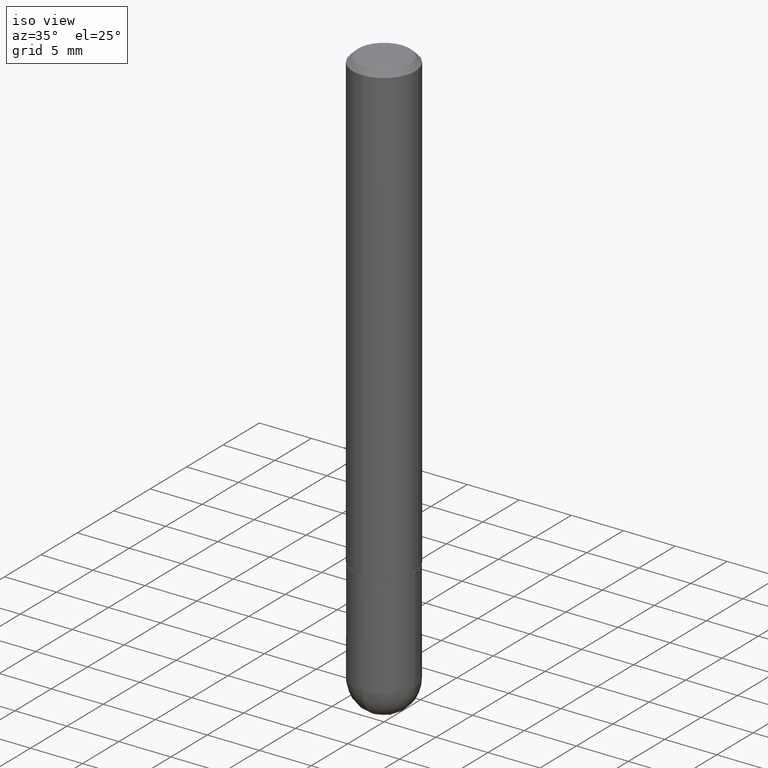
[diagram: clean part render]
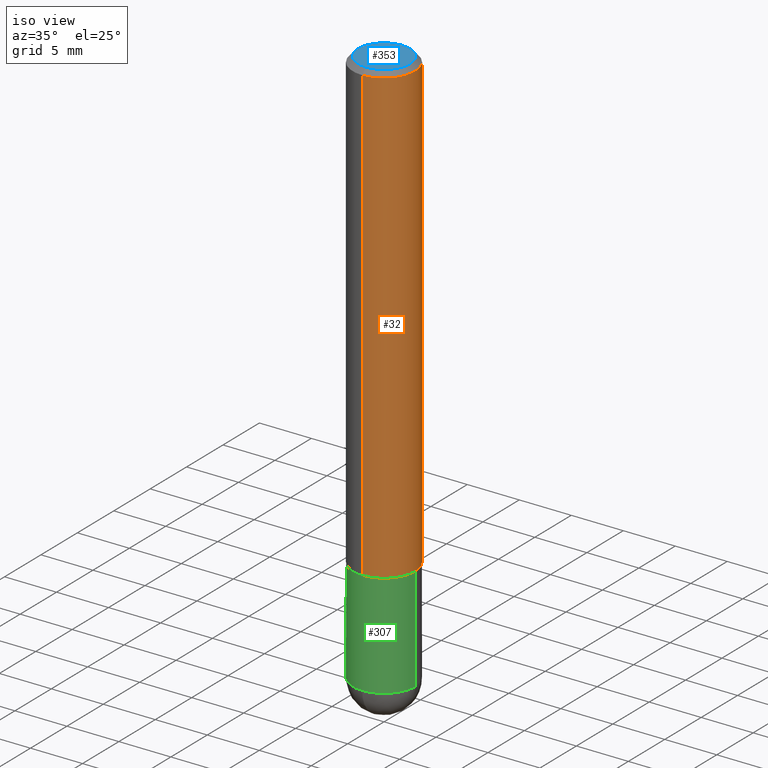
[diagram: same view with three faces highlighted in distinct colors, each labeled with its STEP entity id]
A machine part, iso view with three faces highlighted in distinct colors.
Their STEP definitions:

[orange] entity #32 — the highlighted cylindrical surface (partial cylindrical patch) has radius 2.9997 mm, axis along (-0, 0, 1).
#11 = DIRECTION ( 'NONE',  ( -6.982962677686265133E-15, -1.000000000000000000, 3.491882975495338888E-15 ) ) ;
#12 = DIRECTION ( 'NONE',  ( -2.445188344809910911E-29, 3.491882975495338888E-15, 1.000000000000000000 ) ) ;
#18 = CARTESIAN_POINT ( 'NONE',  ( 8.246878922347484598E-16, 0.1180999999999999273, -0.02000000000000044104 ) ) ;
#23 = VERTEX_POINT ( 'NONE', #285 ) ;
#27 = VERTEX_POINT ( 'NONE', #391 ) ;
#32 = ADVANCED_FACE ( 'NONE', ( #34 ), #66, .T. ) ;
#34 = FACE_OUTER_BOUND ( 'NONE', #260, .T. ) ;
#56 = CIRCLE ( 'NONE', #248, 0.1181000000000002048 ) ;
#61 = EDGE_CURVE ( 'NONE', #27, #116, #101, .T. ) ;
#66 = CYLINDRICAL_SURFACE ( 'NONE', #69, 0.1181000000000001077 ) ;
#69 = AXIS2_PLACEMENT_3D ( 'NONE', #190, #361, #11 ) ;
#87 = DIRECTION ( 'NONE',  ( -6.982962677686265922E-15, -1.000000000000000000, 3.505890868245046092E-15 ) ) ;
#101 = LINE ( 'NONE', #229, #217 ) ;
#110 = ORIENTED_EDGE ( 'NONE', *, *, #172, .T. ) ;
#116 = VERTEX_POINT ( 'NONE', #168 ) ;
#121 = VERTEX_POINT ( 'NONE', #18 ) ;
#131 = ORIENTED_EDGE ( 'NONE', *, *, #267, .T. ) ;
#149 = VECTOR ( 'NONE', #367, 39.37007874015748143 ) ;
#168 = CARTESIAN_POINT ( 'NONE',  ( -8.102248135368172434E-16, -0.1181000000000000660, -0.01999999999999961184 ) ) ;
#169 = DIRECTION ( 'NONE',  ( -6.982962677686265922E-15, -1.000000000000000000, 4.626330217890361448E-15 ) ) ;
#172 = EDGE_CURVE ( 'NONE', #23, #121, #268, .T. ) ;
#190 = CARTESIAN_POINT ( 'NONE',  ( 0.000000000000000000, 0.000000000000000000, 0.000000000000000000 ) ) ;
#193 = AXIS2_PLACEMENT_3D ( 'NONE', #409, #242, #87 ) ;
#203 = CARTESIAN_POINT ( 'NONE',  ( 4.233354581369399407E-29, -6.045496995475080309E-15, -1.731300000000000283 ) ) ;
#217 = VECTOR ( 'NONE', #297, 39.37007874015748143 ) ;
#229 = CARTESIAN_POINT ( 'NONE',  ( -8.246878922347486570E-16, -0.1181000000000001077, 4.123913794059998964E-16 ) ) ;
#242 = DIRECTION ( 'NONE',  ( -2.445188344809910911E-29, 3.491882975495338888E-15, 1.000000000000000000 ) ) ;
#248 = AXIS2_PLACEMENT_3D ( 'NONE', #203, #12, #169 ) ;
#260 = EDGE_LOOP ( 'NONE', ( #131, #110, #388, #304 ) ) ;
#265 = CIRCLE ( 'NONE', #193, 0.1180999999999999966 ) ;
#267 = EDGE_CURVE ( 'NONE', #27, #23, #56, .T. ) ;
#268 = LINE ( 'NONE', #299, #149 ) ;
#285 = CARTESIAN_POINT ( 'NONE',  ( 8.391509709327007782E-16, 0.1180999999999941541, -1.731300000000000727 ) ) ;
#297 = DIRECTION ( 'NONE',  ( -2.445188344809910911E-29, 3.491882975495338493E-15, 1.000000000000000000 ) ) ;
#299 = CARTESIAN_POINT ( 'NONE',  ( 8.391509709326788873E-16, 0.1181000000000001077, -4.123913794059998964E-16 ) ) ;
#304 = ORIENTED_EDGE ( 'NONE', *, *, #61, .F. ) ;
#361 = DIRECTION ( 'NONE',  ( -2.445188344809910911E-29, 3.491882975495338888E-15, 1.000000000000000000 ) ) ;
#367 = DIRECTION ( 'NONE',  ( -2.445188344809910911E-29, 3.491882975495338493E-15, 1.000000000000000000 ) ) ;
#388 = ORIENTED_EDGE ( 'NONE', *, *, #410, .F. ) ;
#391 = CARTESIAN_POINT ( 'NONE',  ( -8.246878922347070446E-16, -0.1181000000000062417, -1.731299999999999617 ) ) ;
#409 = CARTESIAN_POINT ( 'NONE',  ( 4.890376689619828269E-31, -6.983765950990686946E-17, -0.02000000000000002470 ) ) ;
#410 = EDGE_CURVE ( 'NONE', #116, #121, #265, .T. ) ;

[blue] entity #353 — the highlighted planar face has unit normal (0, -0, -1).
#28 = CARTESIAN_POINT ( 'NONE',  ( -7.416198335591022079E-16, -0.09809999999999999276, 3.810097328625765958E-16 ) ) ;
#46 = CIRCLE ( 'NONE', #301, 0.09809999999999999276 ) ;
#134 = EDGE_LOOP ( 'NONE', ( #306, #247 ) ) ;
#135 = DIRECTION ( 'NONE',  ( -6.982962677686265922E-15, -1.000000000000000000, 3.491882975495338888E-15 ) ) ;
#139 = CARTESIAN_POINT ( 'NONE',  ( -9.403219469350512246E-46, 1.342838969830929492E-31, 3.845601296648385233E-17 ) ) ;
#142 = FACE_OUTER_BOUND ( 'NONE', #134, .T. ) ;
#147 = PLANE ( 'NONE',  #170 ) ;
#154 = EDGE_CURVE ( 'NONE', #322, #327, #46, .T. ) ;
#170 = AXIS2_PLACEMENT_3D ( 'NONE', #340, #272, #180 ) ;
#171 = DIRECTION ( 'NONE',  ( -2.445188344809910911E-29, 3.491882975495338888E-15, 1.000000000000000000 ) ) ;
#178 = CARTESIAN_POINT ( 'NONE',  ( 7.548582654578854574E-16, 0.09809999999999999276, -3.040977069296088172E-16 ) ) ;
#180 = DIRECTION ( 'NONE',  ( 6.982962677686265922E-15, 1.000000000000000000, -3.491882975495338493E-15 ) ) ;
#211 = EDGE_CURVE ( 'NONE', #327, #322, #270, .T. ) ;
#247 = ORIENTED_EDGE ( 'NONE', *, *, #211, .T. ) ;
#270 = CIRCLE ( 'NONE', #395, 0.09809999999999999276 ) ;
#272 = DIRECTION ( 'NONE',  ( 2.445188344809910911E-29, -3.491882975495338493E-15, -1.000000000000000000 ) ) ;
#301 = AXIS2_PLACEMENT_3D ( 'NONE', #365, #171, #302 ) ;
#302 = DIRECTION ( 'NONE',  ( -6.982962677686265922E-15, -1.000000000000000000, 3.491882975495338888E-15 ) ) ;
#305 = DIRECTION ( 'NONE',  ( -2.445188344809910911E-29, 3.491882975495338888E-15, 1.000000000000000000 ) ) ;
#306 = ORIENTED_EDGE ( 'NONE', *, *, #154, .T. ) ;
#322 = VERTEX_POINT ( 'NONE', #178 ) ;
#327 = VERTEX_POINT ( 'NONE', #28 ) ;
#340 = CARTESIAN_POINT ( 'NONE',  ( 6.850286386810226523E-16, 0.09809999999999999276, -3.233257134128507618E-16 ) ) ;
#353 = ADVANCED_FACE ( 'NONE', ( #142 ), #147, .F. ) ;
#365 = CARTESIAN_POINT ( 'NONE',  ( -9.403219469350512246E-46, 1.342838969830929492E-31, 3.845601296648385233E-17 ) ) ;
#395 = AXIS2_PLACEMENT_3D ( 'NONE', #139, #305, #135 ) ;

[green] entity #307 — the highlighted cylindrical surface (partial cylindrical patch) has radius 2.9997 mm, axis along (-0, 0, 1).
#1 = DIRECTION ( 'NONE',  ( 1.000000000000000000, -6.982962677686265133E-15, 0.000000000000000000 ) ) ;
#2 = ORIENTED_EDGE ( 'NONE', *, *, #333, .F. ) ;
#21 = AXIS2_PLACEMENT_3D ( 'NONE', #83, #239, #1 ) ;
#22 = CARTESIAN_POINT ( 'NONE',  ( -0.1180999999999999966, -5.896440253896576841E-15, -2.125999999999999890 ) ) ;
#31 = CIRCLE ( 'NONE', #210, 0.1180999999999999966 ) ;
#37 = ORIENTED_EDGE ( 'NONE', *, *, #398, .T. ) ;
#50 = CARTESIAN_POINT ( 'NONE',  ( 0.1180999999999999966, -6.872981015512729341E-15, -1.732299999999999951 ) ) ;
#54 = LINE ( 'NONE', #308, #317 ) ;
#59 = CARTESIAN_POINT ( 'NONE',  ( 0.000000000000000000, 0.000000000000000000, 0.000000000000000000 ) ) ;
#60 = LINE ( 'NONE', #88, #309 ) ;
#75 = AXIS2_PLACEMENT_3D ( 'NONE', #59, #241, #120 ) ;
#78 = CARTESIAN_POINT ( 'NONE',  ( -0.1180999999999999966, -5.896440253896576052E-15, -1.732299999999999951 ) ) ;
#79 = DIRECTION ( 'NONE',  ( 1.000000000000000000, -6.982962677686265133E-15, 0.000000000000000000 ) ) ;
#83 = CARTESIAN_POINT ( 'NONE',  ( 5.199066681949599750E-29, -7.422889326380526631E-15, -2.125999999999999890 ) ) ;
#86 = CIRCLE ( 'NONE', #357, 0.1180999999999999966 ) ;
#88 = CARTESIAN_POINT ( 'NONE',  ( 0.1180999999999999966, -8.246878922347480654E-16, 5.758764772215000440E-30 ) ) ;
#89 = ORIENTED_EDGE ( 'NONE', *, *, #394, .F. ) ;
#103 = CARTESIAN_POINT ( 'NONE',  ( 5.199066681949599750E-29, -7.422889326380526631E-15, -2.125999999999999890 ) ) ;
#120 = DIRECTION ( 'NONE',  ( 1.000000000000000000, -6.982962677686266711E-15, 4.876176775795936353E-29 ) ) ;
#122 = FACE_OUTER_BOUND ( 'NONE', #358, .T. ) ;
#129 = VERTEX_POINT ( 'NONE', #50 ) ;
#148 = DIRECTION ( 'NONE',  ( -2.445468806185136877E-29, 3.491481338843145188E-15, 1.000000000000000000 ) ) ;
#151 = DIRECTION ( 'NONE',  ( -2.445468806185136597E-29, 3.491481338843145583E-15, 1.000000000000000000 ) ) ;
#167 = CARTESIAN_POINT ( 'NONE',  ( -8.391509709326287947E-16, -0.1181000000000077821, -2.125999999999999446 ) ) ;
#174 = CARTESIAN_POINT ( 'NONE',  ( 0.1180999999999999966, -7.560279117064003300E-15, -2.125999999999999890 ) ) ;
#210 = AXIS2_PLACEMENT_3D ( 'NONE', #103, #262, #79 ) ;
#220 = VERTEX_POINT ( 'NONE', #78 ) ;
#239 = DIRECTION ( 'NONE',  ( -2.445468806185136597E-29, 3.491481338843145583E-15, 1.000000000000000000 ) ) ;
#240 = VERTEX_POINT ( 'NONE', #167 ) ;
#241 = DIRECTION ( 'NONE',  ( -2.445468806185136597E-29, 3.491481338843145583E-15, 1.000000000000000000 ) ) ;
#262 = DIRECTION ( 'NONE',  ( -2.445468806185136597E-29, 3.491481338843145583E-15, 1.000000000000000000 ) ) ;
#273 = EDGE_CURVE ( 'NONE', #319, #240, #31, .T. ) ;
#275 = CARTESIAN_POINT ( 'NONE',  ( 4.236285612954512392E-29, -6.048293123277981078E-15, -1.732299999999999951 ) ) ;
#277 = CYLINDRICAL_SURFACE ( 'NONE', #75, 0.1180999999999999966 ) ;
#307 = ADVANCED_FACE ( 'NONE', ( #122 ), #277, .T. ) ;
#308 = CARTESIAN_POINT ( 'NONE',  ( -0.1180999999999999966, 8.391509709326782957E-16, -5.809262341591043784E-30 ) ) ;
#309 = VECTOR ( 'NONE', #148, 39.37007874015748143 ) ;
#311 = DIRECTION ( 'NONE',  ( -2.445468806185136877E-29, 3.491481338843145188E-15, 1.000000000000000000 ) ) ;
#317 = VECTOR ( 'NONE', #311, 39.37007874015748143 ) ;
#319 = VERTEX_POINT ( 'NONE', #22 ) ;
#328 = EDGE_CURVE ( 'NONE', #240, #383, #363, .T. ) ;
#333 = EDGE_CURVE ( 'NONE', #319, #220, #54, .T. ) ;
#346 = DIRECTION ( 'NONE',  ( 1.000000000000000000, -6.982962677686265133E-15, 0.000000000000000000 ) ) ;
#357 = AXIS2_PLACEMENT_3D ( 'NONE', #275, #151, #346 ) ;
#358 = EDGE_LOOP ( 'NONE', ( #2, #386, #408, #37, #89 ) ) ;
#363 = CIRCLE ( 'NONE', #21, 0.1180999999999999966 ) ;
#383 = VERTEX_POINT ( 'NONE', #174 ) ;
#386 = ORIENTED_EDGE ( 'NONE', *, *, #273, .T. ) ;
#394 = EDGE_CURVE ( 'NONE', #220, #129, #86, .T. ) ;
#398 = EDGE_CURVE ( 'NONE', #383, #129, #60, .T. ) ;
#408 = ORIENTED_EDGE ( 'NONE', *, *, #328, .T. ) ;